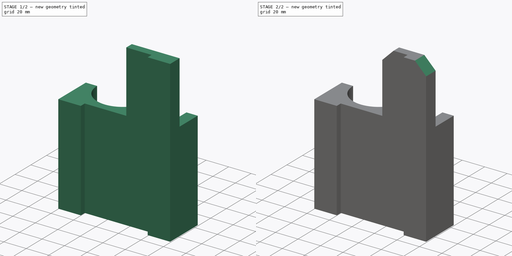
[diagram: build sequence overview — one tinted view per stage of 2, left to right]
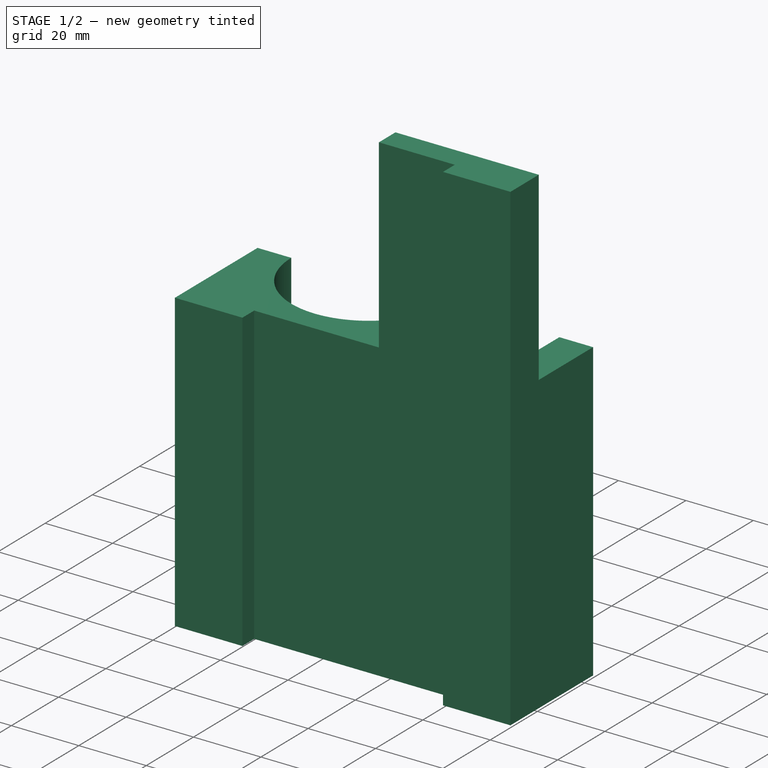
[diagram: stage 1 of 2 — iso view after this stage's code; geometry added in this stage tinted green]
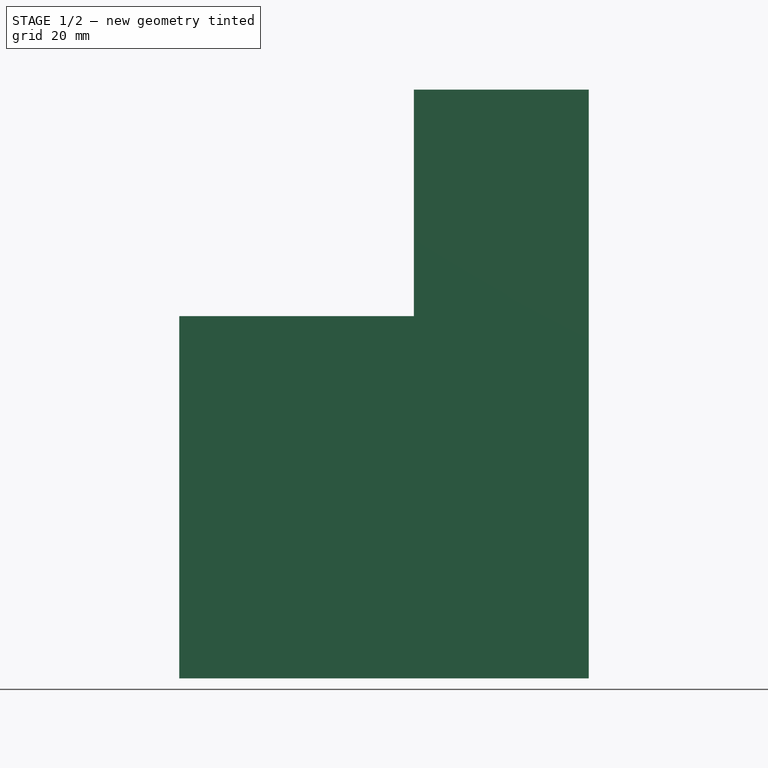
[diagram: stage 1 of 2 — front view after this stage's code; geometry added in this stage tinted green]
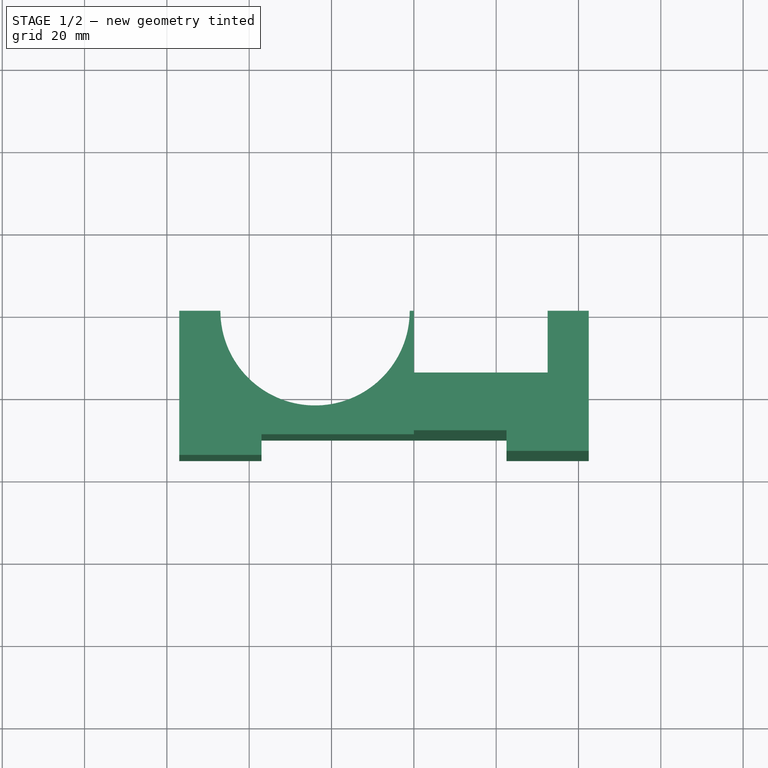
[diagram: stage 1 of 2 — top view after this stage's code; geometry added in this stage tinted green]
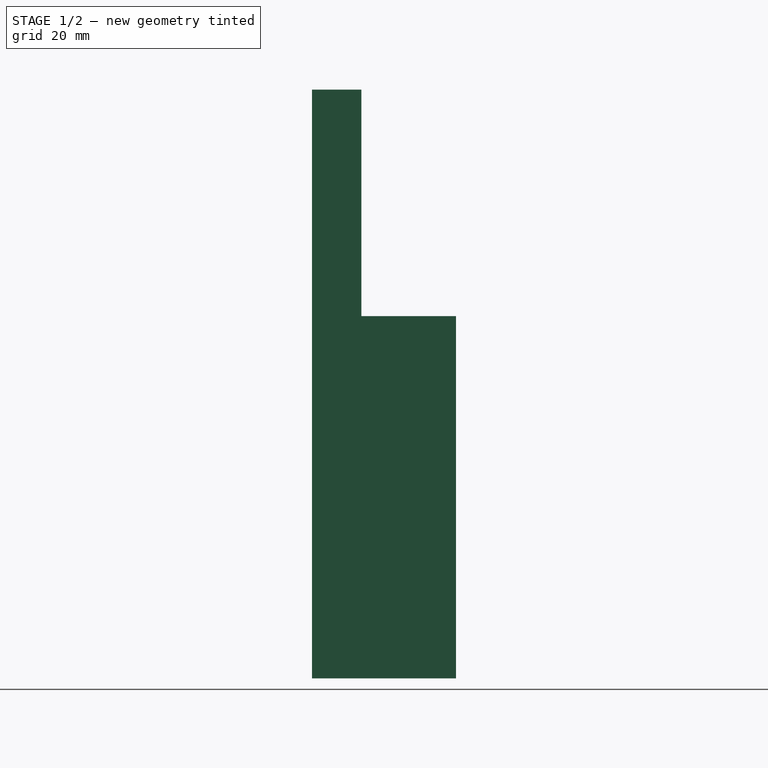
[diagram: stage 1 of 2 — right view after this stage's code; geometry added in this stage tinted green]
FCSTD DOCUMENT  (FreeCAD 0.19R24291 (Git))
Label: door opener stand
License: All rights reserved
LicenseURL: http://en.wikipedia.org/wiki/All_rights_reserved
objects: Sketcher::SketchObject×2, PartDesign::Pad×2, PartDesign::Chamfer×1, PartDesign::Body×1
note: 9 computed .brp shape members not serialized (recipe doc carries the construction recipe); baked Part::Feature solids carry a one-line shape summary decoded from their .brp

FEATURE [Sketcher::SketchObject] Sketch
  FullyConstrained = true
  MapMode = 5
  Support = -> [XY_Plane]
  sketch-geometry (14):
    g0: ArcOfCircle CenterX=-24 CenterY=0 CenterZ=0 NormalX=0 NormalY=0 NormalZ=1 AngleXU=0 Radius=23 StartAngle=3.14159 EndAngle=6.28319
    g1: LineSegment StartX=0 StartY=0 StartZ=0 EndX=0 EndY=-15 EndZ=0
    g2: LineSegment StartX=0 StartY=-15 StartZ=0 EndX=32.5 EndY=-15 EndZ=0
    g3: LineSegment StartX=32.5 StartY=-15 StartZ=0 EndX=32.5 EndY=0 EndZ=0
    g4: LineSegment StartX=32.5 StartY=0 StartZ=0 EndX=42.5 EndY=0 EndZ=0
    g5: LineSegment StartX=42.5 StartY=0 StartZ=0 EndX=42.5 EndY=-35 EndZ=0
    g6: LineSegment StartX=-57 StartY=-35 StartZ=0 EndX=-57 EndY=0 EndZ=0
    g7: LineSegment StartX=-57 StartY=0 StartZ=0 EndX=-47 EndY=2.8e-15 EndZ=0
    g8: LineSegment StartX=-1 StartY=-5.6e-15 StartZ=0 EndX=0 EndY=0 EndZ=0
    g9: LineSegment StartX=-57 StartY=-35 StartZ=0 EndX=-37 EndY=-35 EndZ=0
    g10: LineSegment StartX=-37 StartY=-35 StartZ=0 EndX=-37 EndY=-30 EndZ=0
    g11: LineSegment StartX=-37 StartY=-30 StartZ=0 EndX=22.5 EndY=-30 EndZ=0
    g12: LineSegment StartX=22.5 StartY=-30 StartZ=0 EndX=22.5 EndY=-35 EndZ=0
    g13: LineSegment StartX=22.5 StartY=-35 StartZ=0 EndX=42.5 EndY=-35 EndZ=0
  constraints (42):
    c: PointOnObject(g0,g-1)
    c: PointOnObject(g0,g-1)
    c: PointOnObject(g0,g-1)
    c: Diameter(g0) = 46
    c: Vertical(g1)
    c: Coincident(g1,g2)
    c: Horizontal(g2)
    c: Coincident(g2,g3)
    c: PointOnObject(g3,g-1)
    c: Vertical(g3)
    c: Coincident(g3,g4)
    c: PointOnObject(g4,g-1)
    c: Coincident(g4,g5)
    c: Vertical(g5)
    c: PointOnObject(g6,g-1)
    c: Vertical(g6)
    c: Coincident(g6,g7)
    c: Coincident(g7,g0)
    c: Coincident(g8,g0)
    c: Coincident(g8,g1)
    c: DistanceX(g8,g8) = 1
    c: DistanceX(g7,g7) = 10
    c: DistanceX(g4,g4) = 10
    c: DistanceY(g1,g1) = 15
    c: DistanceX(g2,g2) = 32.5
    c: DistanceY(g6,g6) = 35
    c: Coincident(g6,g9)
    c: Horizontal(g9)
    c: Coincident(g9,g10)
    c: Vertical(g10)
    c: Coincident(g10,g11)
    c: Horizontal(g11)
    c: Coincident(g11,g12)
    c: Vertical(g12)
    c: Coincident(g12,g13)
    c: Coincident(g13,g5)
    c: Horizontal(g13)
    c: DistanceX(g9,g9) = 20
    c: DistanceX(g13,g13) = 20
    c: Coincident(g1,g-1)
    c: DistanceY(g10,g10) = 5
    c: Horizontal(g9,g12)
FEATURE [PartDesign::Pad] Pad
  Direction = (1,1,1)
  Length = 88
  Length2 = 100
  Profile = -> Sketch
  Type = 0
FEATURE [Sketcher::SketchObject] Sketch001
  ExternalGeometry = -> [Pad]
  FullyConstrained = true
  MapMode = 5
  Placement = pos=(0,0,88) rot=(0,0,1;0rad)
  Support = -> [Pad]
  sketch-geometry (6):
    g0: LineSegment StartX=0 StartY=-23 StartZ=0 EndX=42.5 EndY=-23 EndZ=0
    g1: LineSegment StartX=42.5 StartY=-23 StartZ=0 EndX=42.5 EndY=-35 EndZ=0
    g2: LineSegment StartX=0 StartY=-30 StartZ=0 EndX=0 EndY=-23 EndZ=0
    g3: LineSegment StartX=42.5 StartY=-35 StartZ=0 EndX=22.5 EndY=-35 EndZ=0
    g4: LineSegment StartX=22.5 StartY=-35 StartZ=0 EndX=22.5 EndY=-30 EndZ=0
    g5: LineSegment StartX=22.5 StartY=-30 StartZ=0 EndX=0 EndY=-30 EndZ=0
  constraints (15):
    c: Coincident(g0,g1)
    c: Coincident(g2,g0)
    c: Horizontal(g0)
    c: Vertical(g1)
    c: Vertical(g2)
    c: PointOnObject(g0,g-2)
    c: PointOnObject(g2,g-4)
    c: DistanceY(g0,g-3) = 8
    c: Coincident(g1,g-5)
    c: Coincident(g1,g3)
    c: Coincident(g3,g-6)
    c: Coincident(g3,g4)
    c: Coincident(g4,g-4)
    c: Coincident(g4,g5)
    c: Coincident(g5,g2)
FEATURE [PartDesign::Pad] Pad001
  BaseFeature = -> Pad
  Direction = (1,1,1)
  Length = 55
  Length2 = 100
  Profile = -> Sketch001
  Type = 0
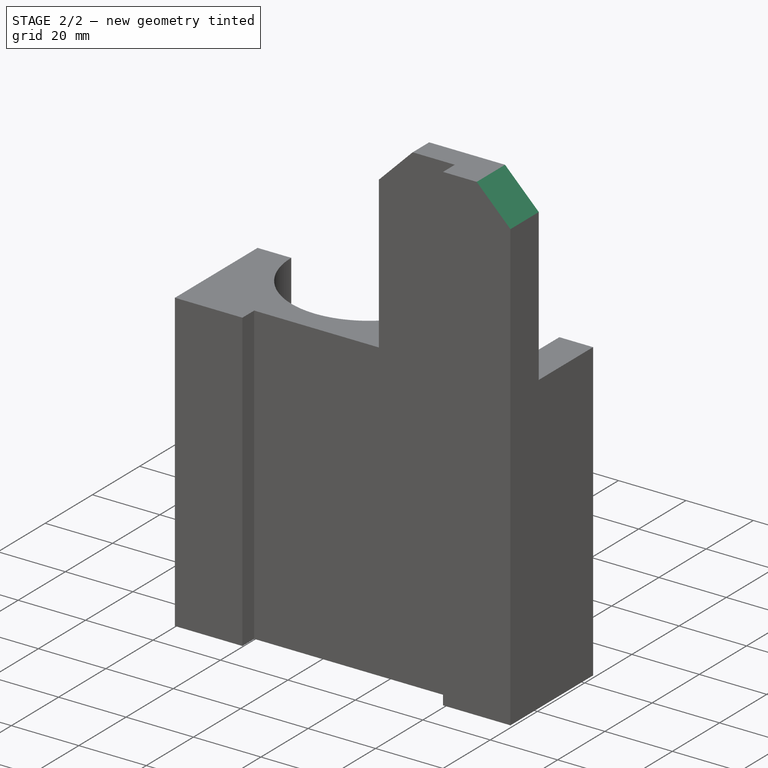
[diagram: stage 2 of 2 — iso view after this stage's code; geometry added in this stage tinted green]
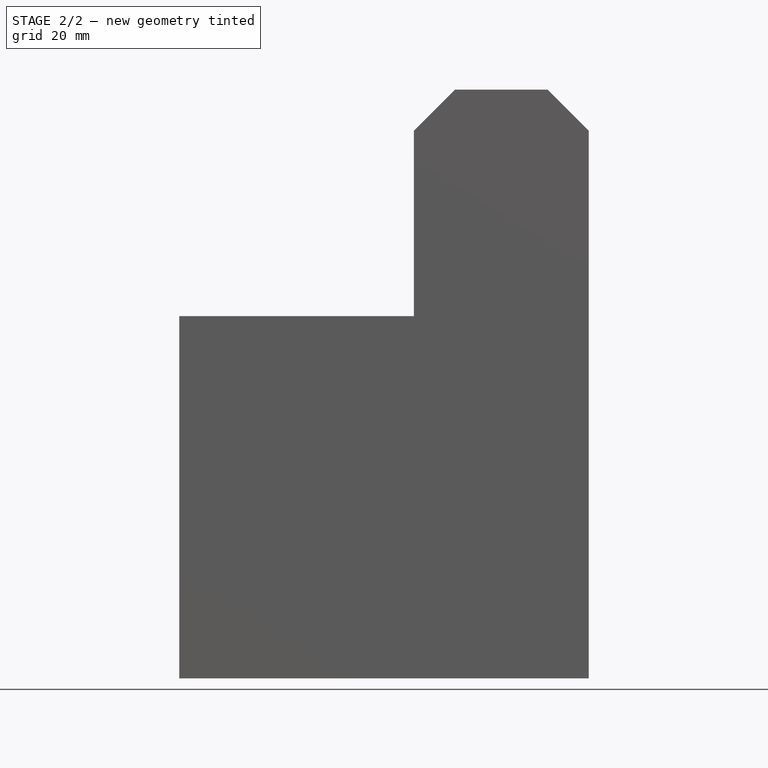
[diagram: stage 2 of 2 — front view after this stage's code; geometry added in this stage tinted green]
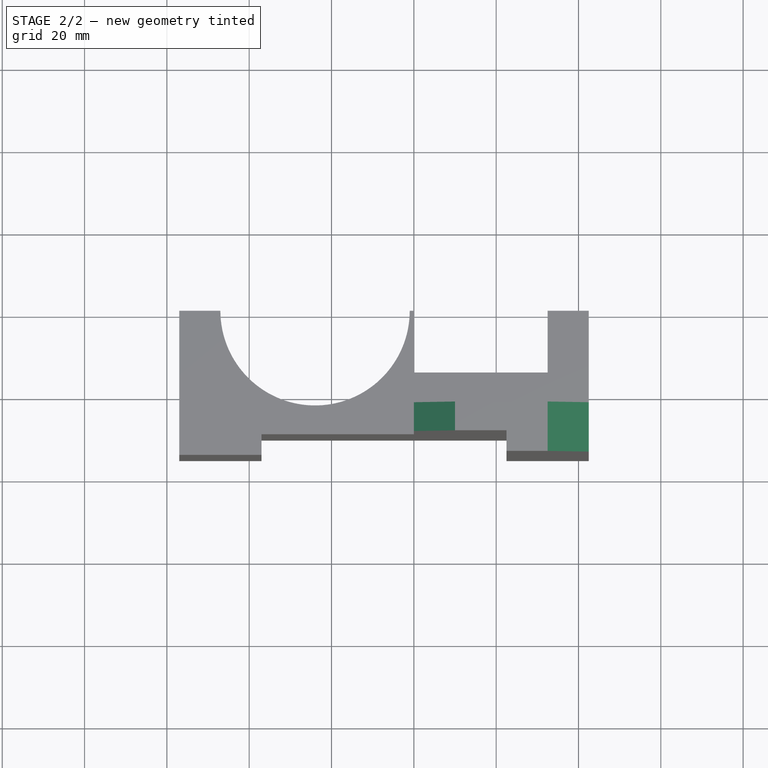
[diagram: stage 2 of 2 — top view after this stage's code; geometry added in this stage tinted green]
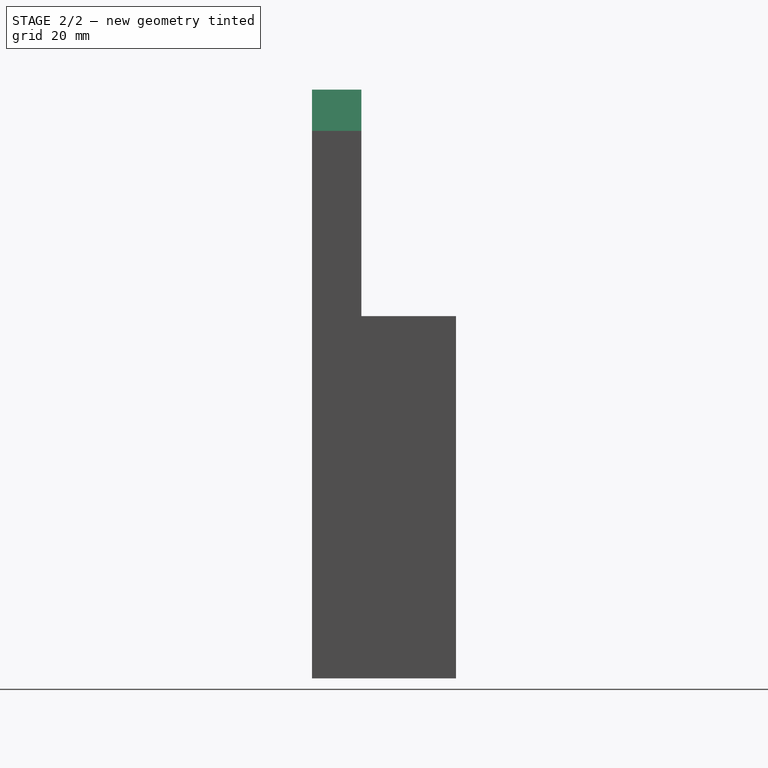
[diagram: stage 2 of 2 — right view after this stage's code; geometry added in this stage tinted green]
FEATURE [PartDesign::Chamfer] Chamfer
  Angle = 45
  Base = -> Pad001 [Edge49,Edge53]
  BaseFeature = -> Pad001
  ChamferType = 0
  FlipDirection = false
  Size = 10
  Size2 = 1
  SupportTransform = false
FEATURE [PartDesign::Body] Body
  Group = -> [Sketch,Pad,Sketch001,Pad001,Chamfer]
  Origin = -> Origin
  Tip = -> Chamfer
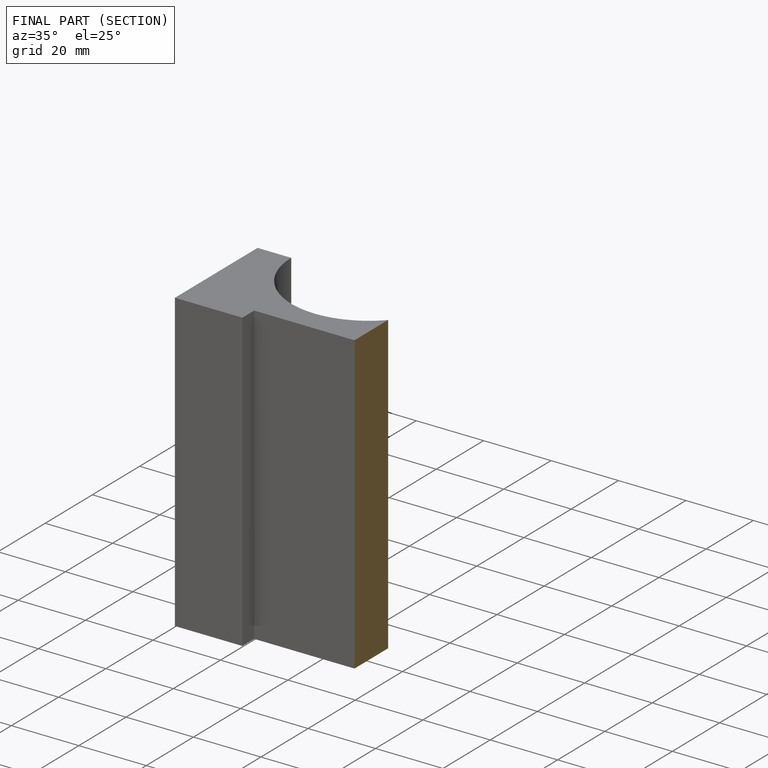
[diagram: finished part — half-section view (interior)]
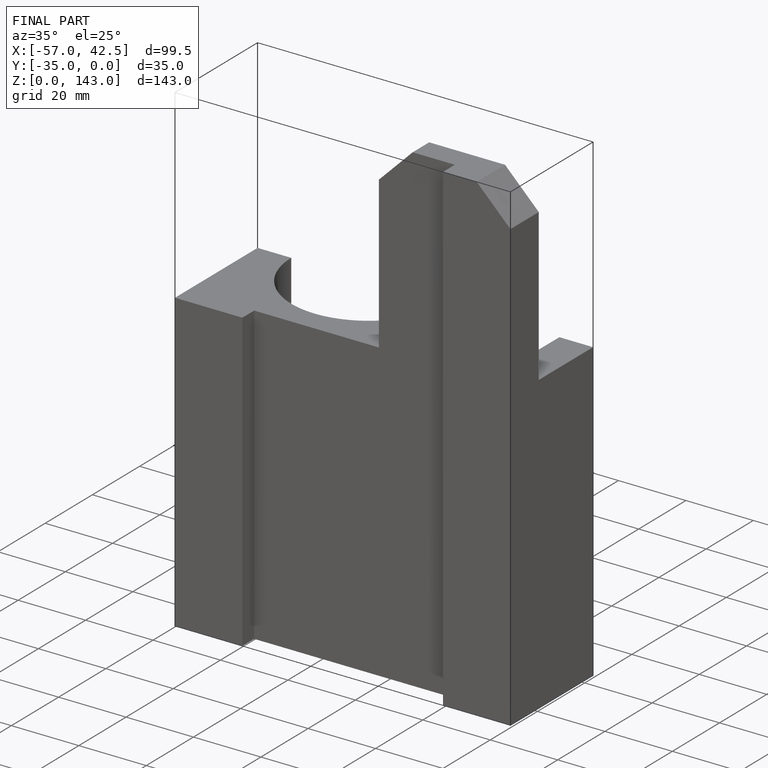
[diagram: finished part — iso view with bounding-box wireframe]
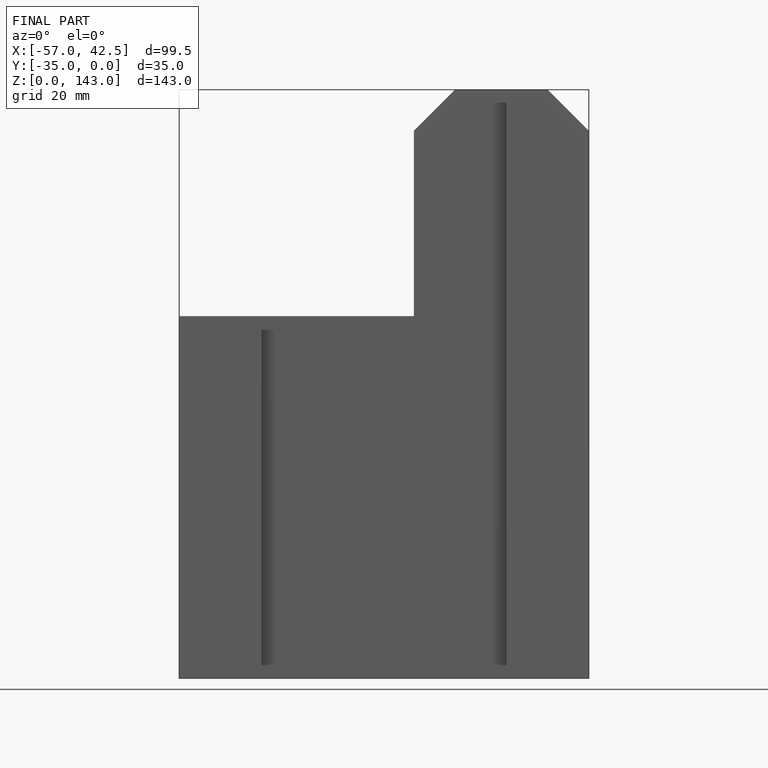
[diagram: finished part — front view with bounding-box wireframe]
